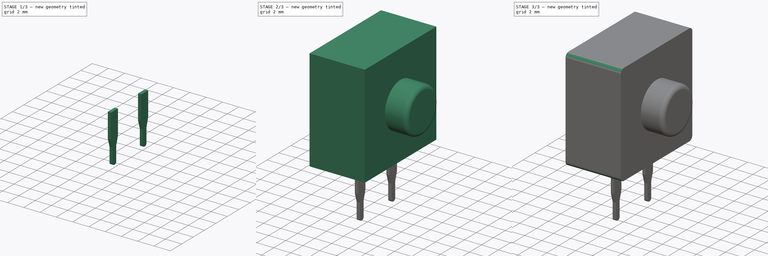
[diagram: build sequence overview — one tinted view per stage of 3, left to right]
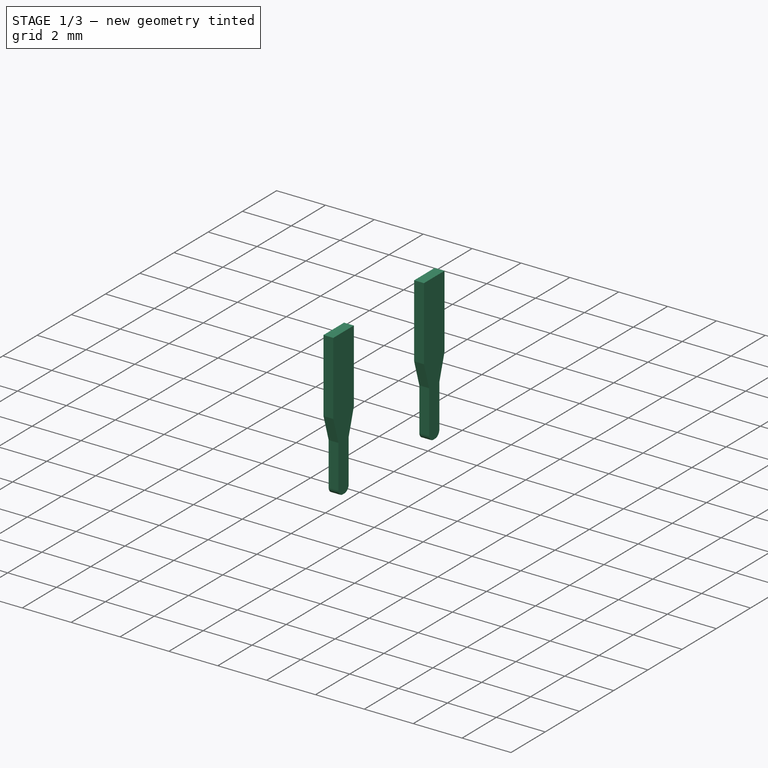
[diagram: stage 1 of 3 — iso view after this stage's code; geometry added in this stage tinted green]
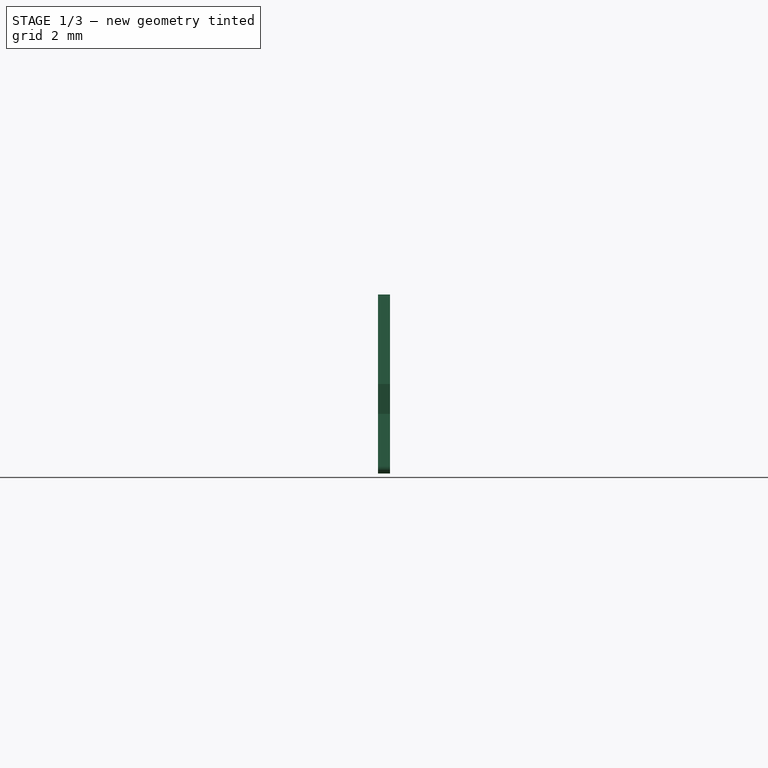
[diagram: stage 1 of 3 — front view after this stage's code; geometry added in this stage tinted green]
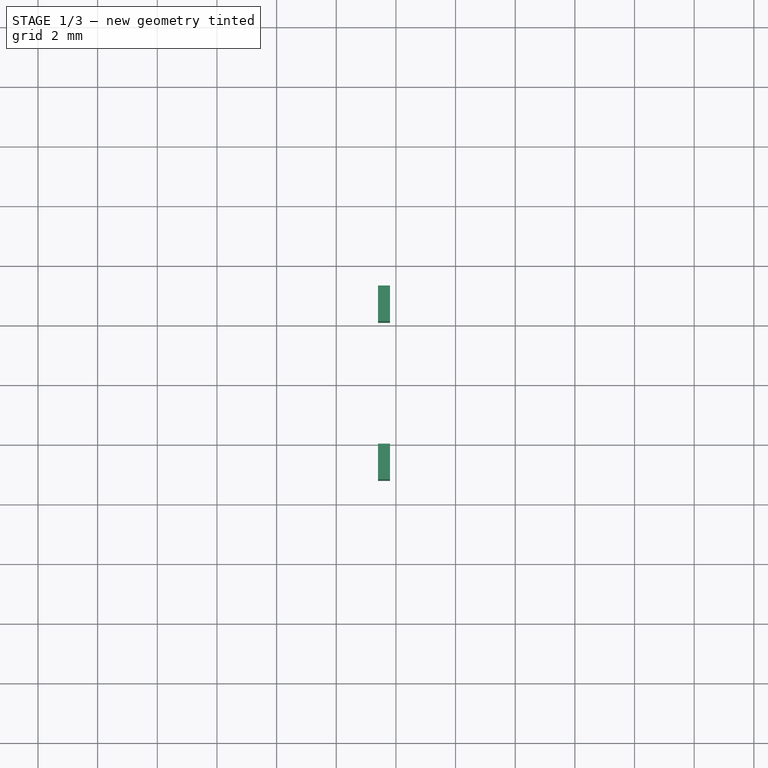
[diagram: stage 1 of 3 — top view after this stage's code; geometry added in this stage tinted green]
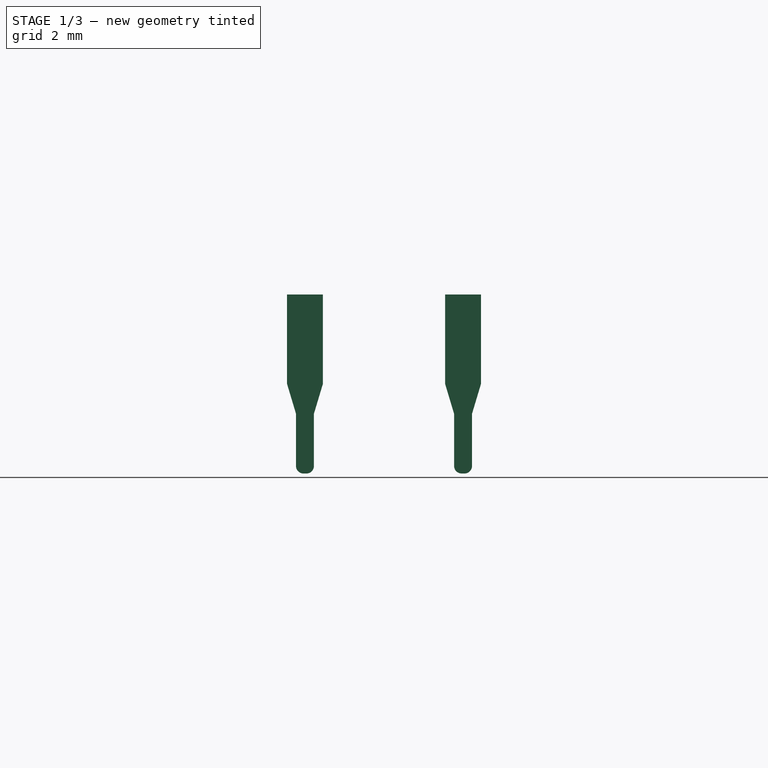
[diagram: stage 1 of 3 — right view after this stage's code; geometry added in this stage tinted green]
FCSTD DOCUMENT  (FreeCAD 0.16R6223 (Git))
Label: SW_spst
License: All rights reserved
LicenseURL: http://en.wikipedia.org/wiki/All_rights_reserved
objects: Sketcher::SketchObject×2, PartDesign::Pad×2, Part::Fillet×2, PartDesign::Fillet×1, Part::Cylinder×1, Part::MultiFuse×1
note: 11 computed .brp shape members not serialized (recipe doc carries the construction recipe); baked Part::Feature solids carry a one-line shape summary decoded from their .brp

FEATURE [Sketcher::SketchObject] Sketch001
  Placement = pos=(3.4,0,0) rot=(0.57735,0.57735,0.57735;2.0944rad)
  sketch-geometry (16):
    g0: LineSegment StartX=-3.25 StartY=-6 StartZ=0 EndX=-2.05 EndY=-6 EndZ=0
    g1: LineSegment StartX=-2.05 StartY=-6 StartZ=0 EndX=-2.05 EndY=-9 EndZ=0
    g2: LineSegment StartX=-2.05 StartY=-9 StartZ=0 EndX=-2.35 EndY=-10 EndZ=0
    g3: LineSegment StartX=-2.35 StartY=-10 StartZ=0 EndX=-2.35 EndY=-12 EndZ=0
    g4: LineSegment StartX=-2.35 StartY=-12 StartZ=0 EndX=-2.95 EndY=-12 EndZ=0
    g5: LineSegment StartX=-2.95 StartY=-12 StartZ=0 EndX=-2.95 EndY=-10 EndZ=0
    g6: LineSegment StartX=-2.95 StartY=-10 StartZ=0 EndX=-3.25 EndY=-9 EndZ=0
    g7: LineSegment StartX=-3.25 StartY=-9 StartZ=0 EndX=-3.25 EndY=-6 EndZ=0
    g8: LineSegment StartX=2.05 StartY=-6 StartZ=0 EndX=3.25 EndY=-6 EndZ=0
    g9: LineSegment StartX=3.25 StartY=-6 StartZ=0 EndX=3.25 EndY=-9 EndZ=0
    g10: LineSegment StartX=3.25 StartY=-9 StartZ=0 EndX=2.95 EndY=-10 EndZ=0
    g11: LineSegment StartX=2.95 StartY=-10 StartZ=0 EndX=2.95 EndY=-12 EndZ=0
    g12: LineSegment StartX=2.95 StartY=-12 StartZ=0 EndX=2.35 EndY=-12 EndZ=0
    g13: LineSegment StartX=2.35 StartY=-12 StartZ=0 EndX=2.35 EndY=-10 EndZ=0
    g14: LineSegment StartX=2.35 StartY=-10 StartZ=0 EndX=2.05 EndY=-9 EndZ=0
    g15: LineSegment StartX=2.05 StartY=-9 StartZ=0 EndX=2.05 EndY=-6 EndZ=0
  constraints (47):
    c: Horizontal(g0)
    c: Coincident(g0,g1)
    c: Vertical(g1)
    c: Coincident(g1,g2)
    c: Coincident(g2,g3)
    c: Vertical(g3)
    c: Coincident(g3,g4)
    c: Horizontal(g4)
    c: Coincident(g4,g5)
    c: Vertical(g5)
    c: Coincident(g5,g6)
    c: Coincident(g6,g7)
    c: Coincident(g7,g0)
    c: Vertical(g7)
    c: DistanceX(g0) = 1.2
    c: DistanceX(g4) = -0.6
    c: DistanceY(g7) = 3
    c: DistanceY(g1) = -3
    c: DistanceY(g5) = 2
    c: DistanceY(g3) = -2
    c: DistanceX(g6,g5) = 0.3
    c: DistanceX(g-1,g0) = -2.05
    c: DistanceY(g-1,g0) = -6
    c: DistanceY(g0,g4) = -6
    c: Horizontal(g8)
    c: Coincident(g8,g9)
    c: Vertical(g9)
    c: Coincident(g9,g10)
    c: Coincident(g10,g11)
    c: Vertical(g11)
    c: Coincident(g11,g12)
    c: Horizontal(g12)
    c: Coincident(g12,g13)
    c: Vertical(g13)
    c: Coincident(g13,g14)
    c: Coincident(g14,g15)
    c: Coincident(g15,g8)
    c: Vertical(g15)
    c: DistanceX(g8) = 1.2
    c: DistanceX(g12) = -0.6
    c: DistanceY(g15) = 3
    c: DistanceY(g9) = -3
    c: DistanceY(g13) = 2
    c: DistanceY(g11) = -2
    c: DistanceX(g14,g13) = 0.3
    c: DistanceY(g8,g12) = -6
    c: DistanceX(g0,g8) = 4.1
FEATURE [PartDesign::Pad] Pad001
  Length = 0.4
  Length2 = 100
  Placement = pos=(3.4,0,0) rot=(0.57735,0.57735,0.57735;2.0944rad)
  Sketch = -> Sketch001
  Type = 0
FEATURE [Part::Fillet] Fillet002
  Base = -> Pad001
  Edges = 4 edges r=0.25: [Edge11,Edge14,Edge35,Edge38]
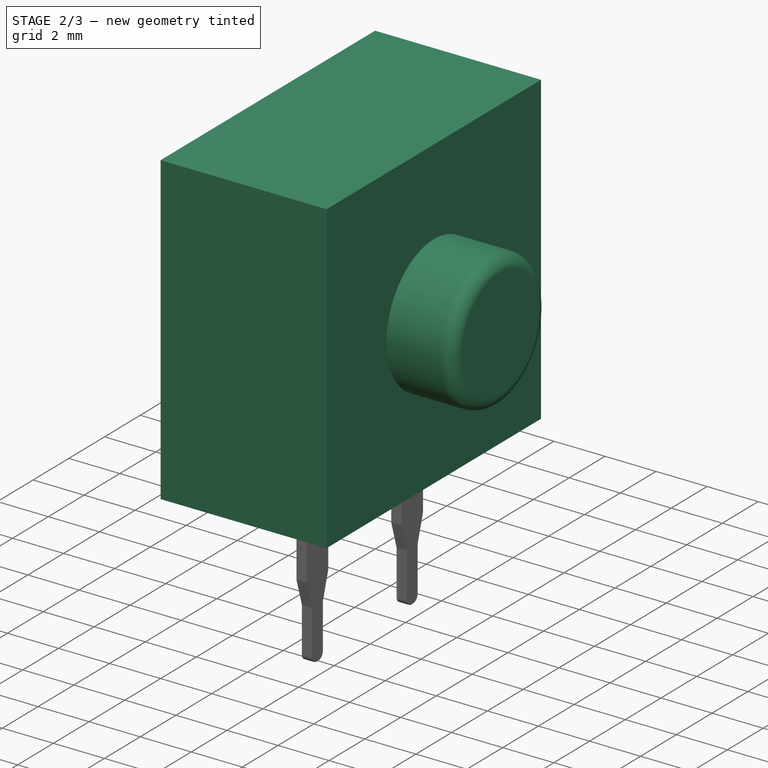
[diagram: stage 2 of 3 — iso view after this stage's code; geometry added in this stage tinted green]
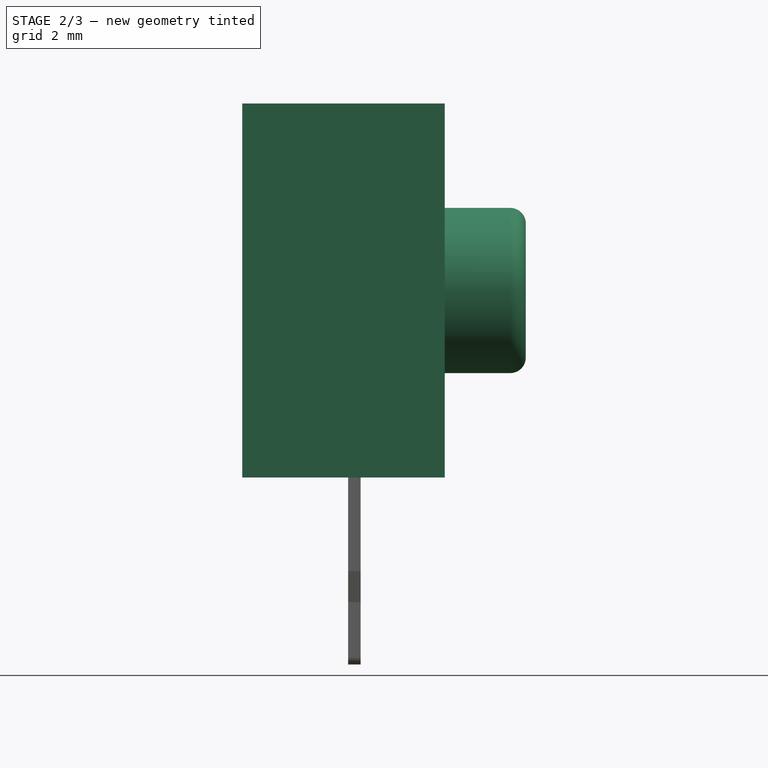
[diagram: stage 2 of 3 — front view after this stage's code; geometry added in this stage tinted green]
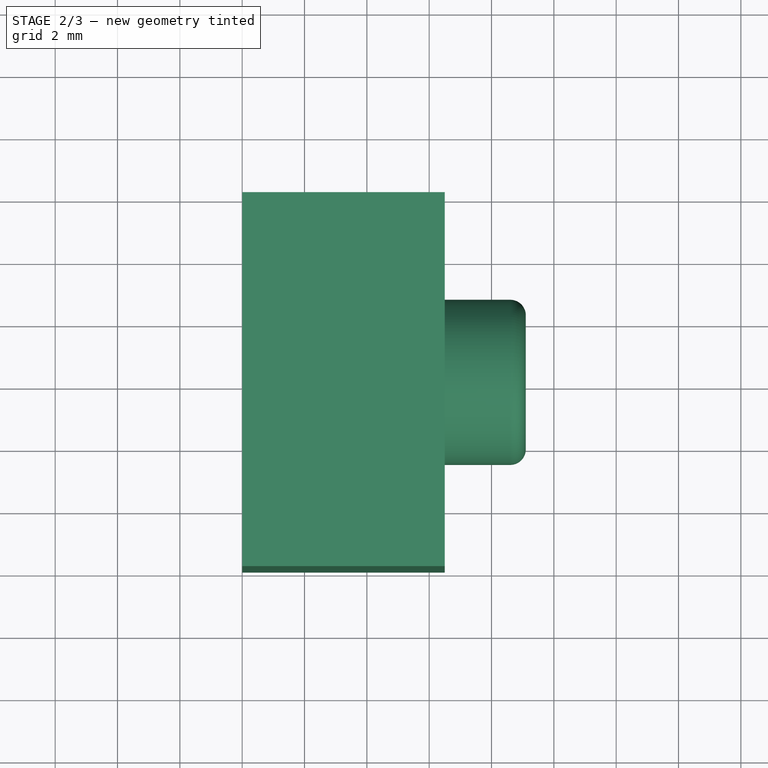
[diagram: stage 2 of 3 — top view after this stage's code; geometry added in this stage tinted green]
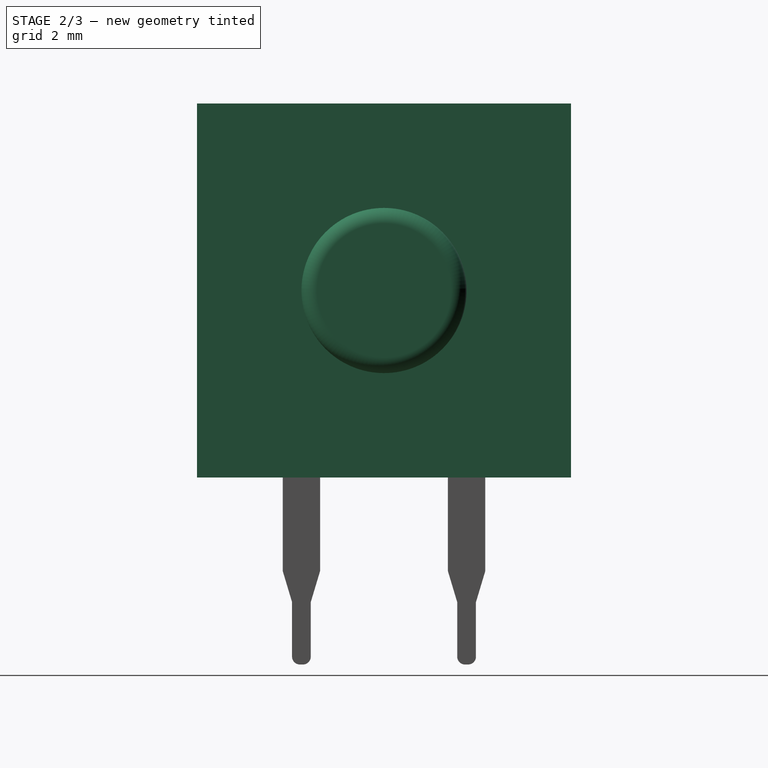
[diagram: stage 2 of 3 — right view after this stage's code; geometry added in this stage tinted green]
FEATURE [Sketcher::SketchObject] Sketch
  Placement = pos=(0,0,0) rot=(0.57735,0.57735,0.57735;2.0944rad)
  sketch-geometry (4):
    g0: LineSegment StartX=-6 StartY=6 StartZ=0 EndX=6 EndY=6 EndZ=0
    g1: LineSegment StartX=6 StartY=6 StartZ=0 EndX=6 EndY=-6 EndZ=0
    g2: LineSegment StartX=6 StartY=-6 StartZ=0 EndX=-6 EndY=-6 EndZ=0
    g3: LineSegment StartX=-6 StartY=-6 StartZ=0 EndX=-6 EndY=6 EndZ=0
  constraints (12):
    c: Coincident(g0,g1)
    c: Coincident(g1,g2)
    c: Coincident(g2,g3)
    c: Coincident(g3,g0)
    c: Horizontal(g0)
    c: Horizontal(g2)
    c: Vertical(g1)
    c: Vertical(g3)
    c: DistanceX(g0) = 12
    c: DistanceY(g3) = 12
    c: Symmetric(g0,g0,g-2)
    c: Symmetric(g0,g2,g-1)
FEATURE [PartDesign::Pad] Pad
  Length = 6.5
  Length2 = 100
  Placement = pos=(0,0,0) rot=(0.57735,0.57735,0.57735;2.0944rad)
  Sketch = -> Sketch
  Type = 0
FEATURE [Part::Cylinder] Cylinder
  Angle = 360
  Height = 2.6
  Placement = pos=(6.5,0,0) rot=(0,1,0;1.5708rad)
  Radius = 2.65
FEATURE [Part::Fillet] Fillet001
  Base = -> Cylinder
  Edges = 1 edges r=0.5: [Edge1]
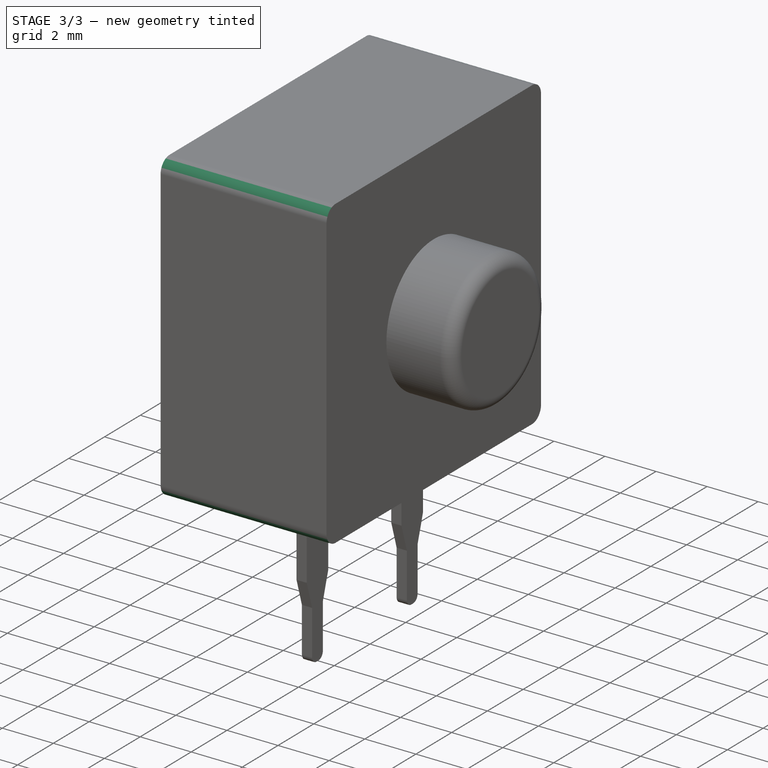
[diagram: stage 3 of 3 — iso view after this stage's code; geometry added in this stage tinted green]
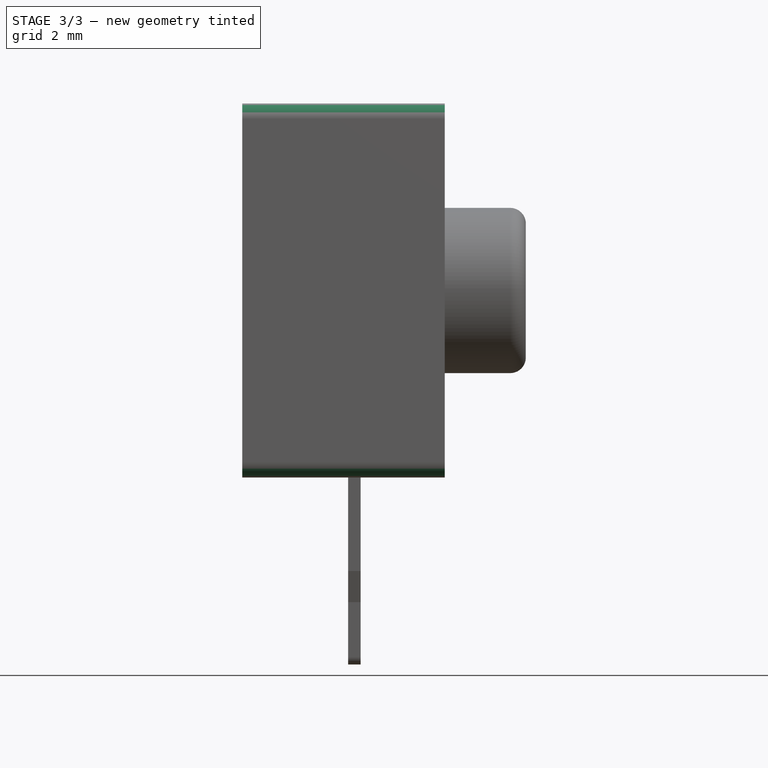
[diagram: stage 3 of 3 — front view after this stage's code; geometry added in this stage tinted green]
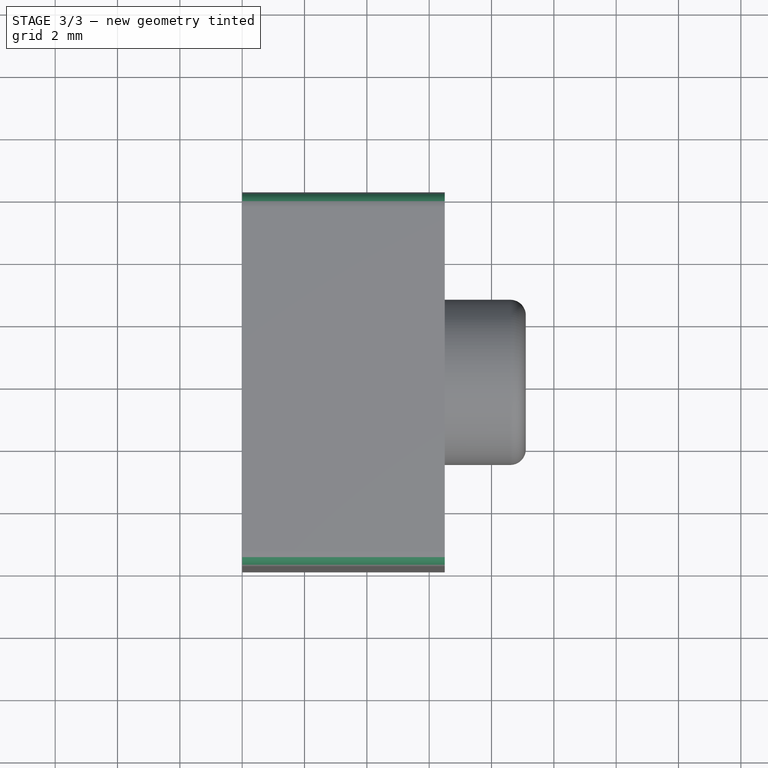
[diagram: stage 3 of 3 — top view after this stage's code; geometry added in this stage tinted green]
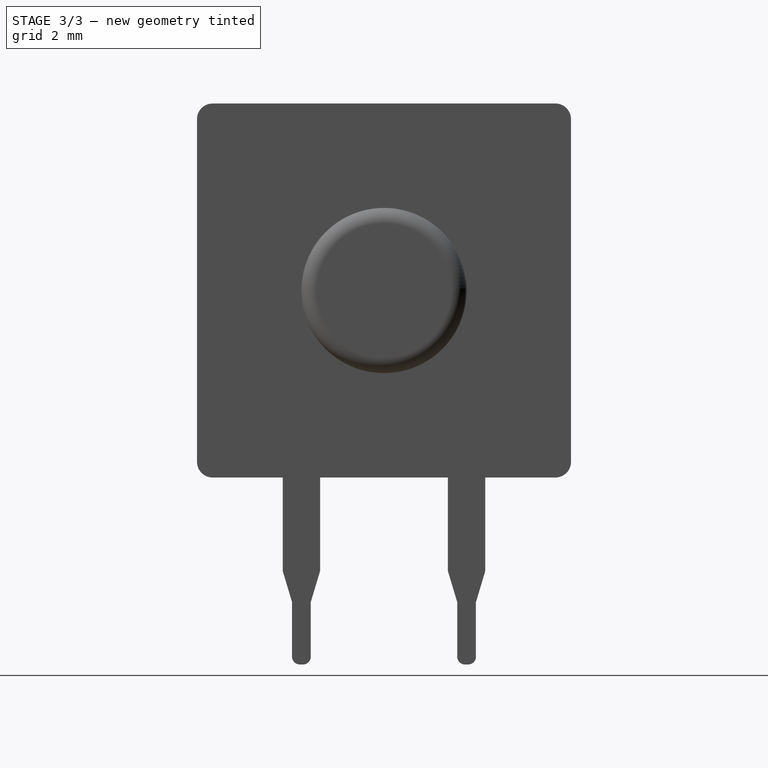
[diagram: stage 3 of 3 — right view after this stage's code; geometry added in this stage tinted green]
FEATURE [PartDesign::Fillet] Fillet
  Base = -> Pad [Edge2,Edge1,Edge8,Edge5]
  Placement = pos=(0,0,0) rot=(0.57735,0.57735,0.57735;2.0944rad)
  Radius = 0.5
FEATURE [Part::MultiFuse] Fusion
  Shapes = -> [Fillet,Fillet001,Fillet002]
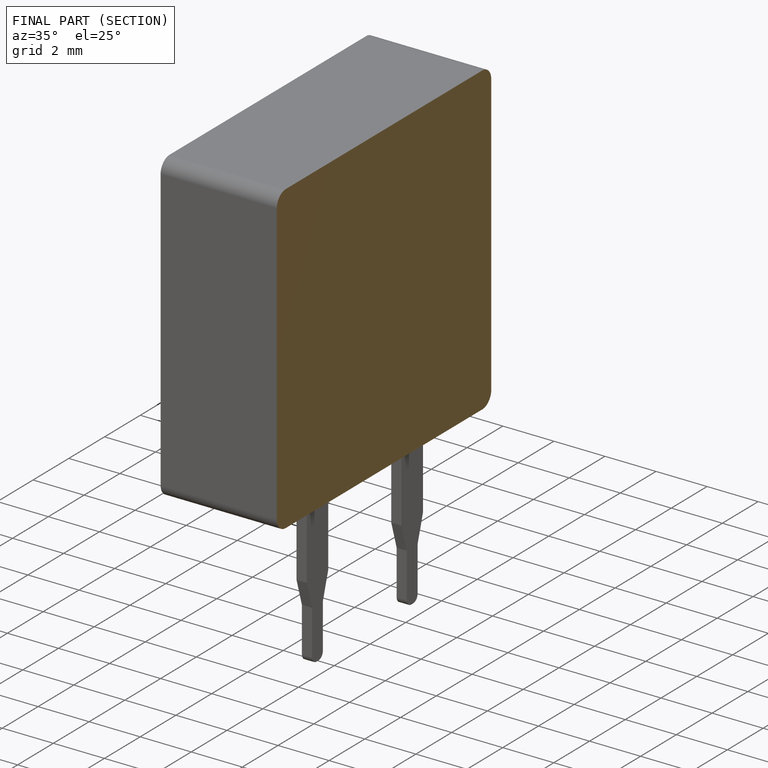
[diagram: finished part — half-section view (interior)]
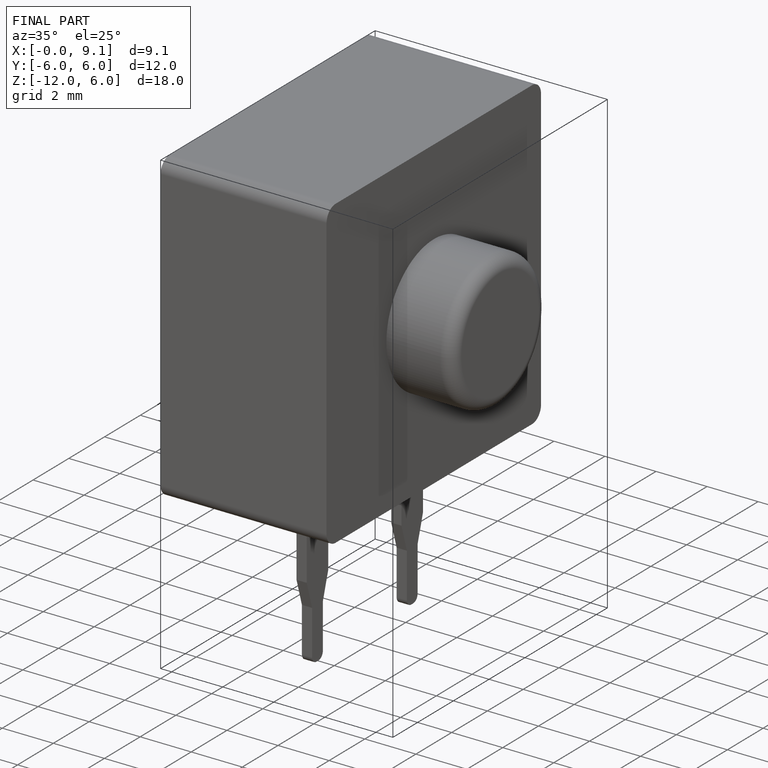
[diagram: finished part — iso view with bounding-box wireframe]
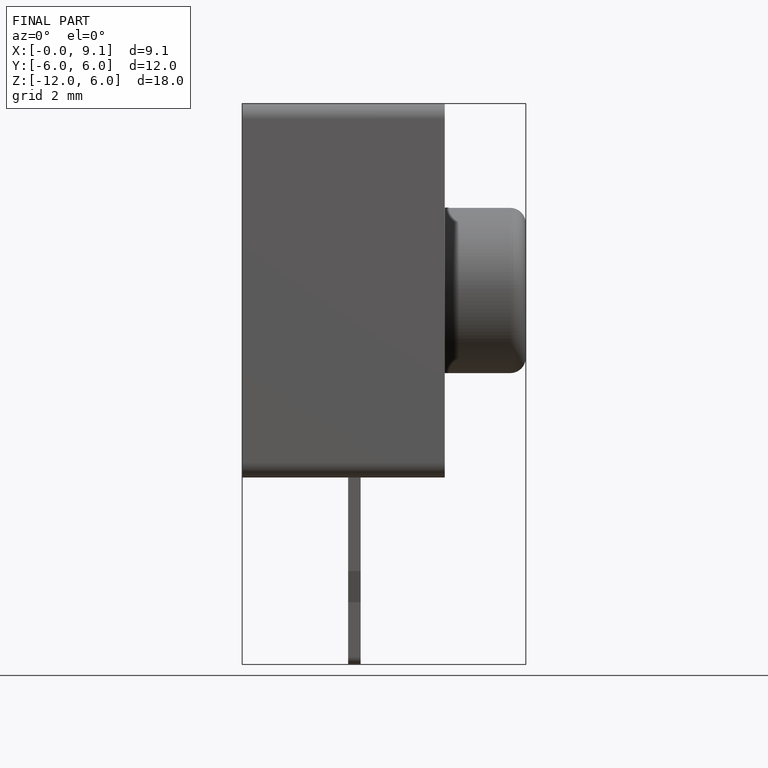
[diagram: finished part — front view with bounding-box wireframe]
